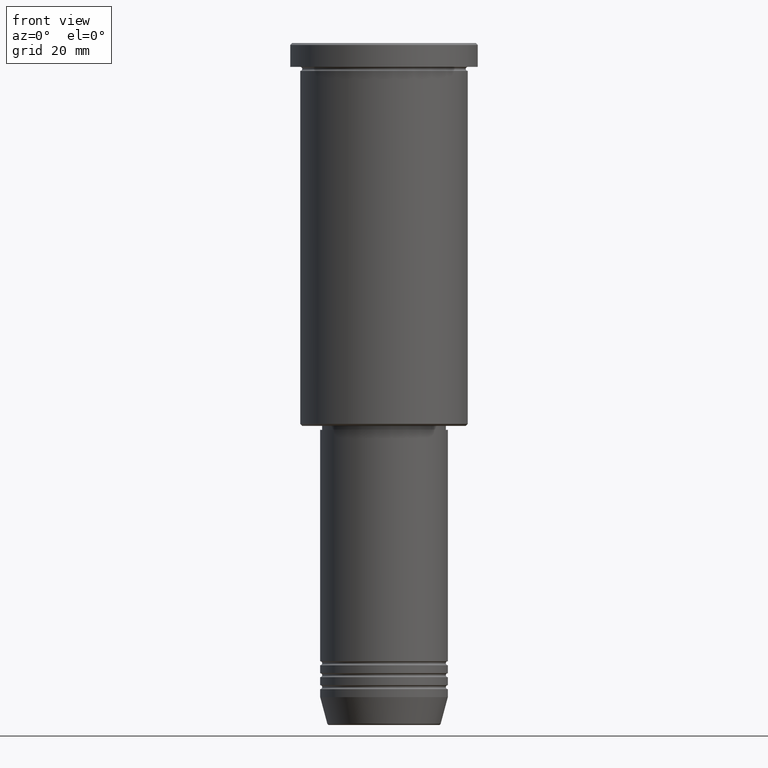
[diagram: clean part render]
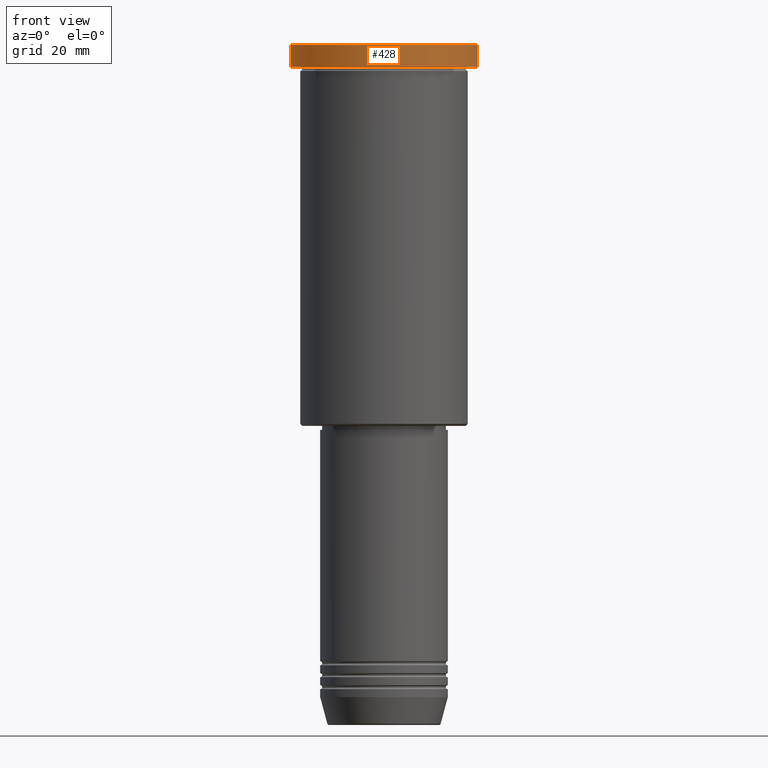
[diagram: same view with one face highlighted and labeled with its STEP entity id]
A machine part, front view. The second image highlights one B-rep face of the part: STEP entity #428.
In plain terms, the highlighted cylindrical surface (partial cylindrical patch) has radius 23.5 mm, axis along (-0, -0, 1).
Its self-contained STEP definition (entity closure, byte-faithful):
#29 = CARTESIAN_POINT ( 'NONE',  ( 0.000000000000000000, 0.000000000000000000, 0.000000000000000000 ) ) ;
#49 = ORIENTED_EDGE ( 'NONE', *, *, #179, .T. ) ;
#65 = CARTESIAN_POINT ( 'NONE',  ( -23.50000000000000000, 2.877919977996280320E-15, -5.999999999999994671 ) ) ;
#84 = VERTEX_POINT ( 'NONE', #649 ) ;
#94 = DIRECTION ( 'NONE',  ( -0.000000000000000000, -0.000000000000000000, 1.000000000000000000 ) ) ;
#138 = AXIS2_PLACEMENT_3D ( 'NONE', #1046, #143, #349 ) ;
#143 = DIRECTION ( 'NONE',  ( -0.000000000000000000, -0.000000000000000000, 1.000000000000000000 ) ) ;
#179 = EDGE_CURVE ( 'NONE', #84, #497, #405, .T. ) ;
#286 = DIRECTION ( 'NONE',  ( 1.000000000000000000, 0.000000000000000000, 0.000000000000000000 ) ) ;
#349 = DIRECTION ( 'NONE',  ( 1.000000000000000000, 0.000000000000000000, 0.000000000000000000 ) ) ;
#393 = DIRECTION ( 'NONE',  ( 1.000000000000000000, 0.000000000000000000, 0.000000000000000000 ) ) ;
#405 = LINE ( 'NONE', #596, #588 ) ;
#415 = VECTOR ( 'NONE', #995, 1000.000000000000000 ) ;
#428 = ADVANCED_FACE ( 'NONE', ( #922 ), #737, .T. ) ;
#451 = ORIENTED_EDGE ( 'NONE', *, *, #848, .T. ) ;
#497 = VERTEX_POINT ( 'NONE', #823 ) ;
#501 = EDGE_CURVE ( 'NONE', #577, #1182, #581, .T. ) ;
#577 = VERTEX_POINT ( 'NONE', #65 ) ;
#581 = LINE ( 'NONE', #648, #415 ) ;
#588 = VECTOR ( 'NONE', #1129, 1000.000000000000000 ) ;
#596 = CARTESIAN_POINT ( 'NONE',  ( 23.50000000000000000, 0.000000000000000000, 0.000000000000000000 ) ) ;
#617 = AXIS2_PLACEMENT_3D ( 'NONE', #29, #94, #393 ) ;
#648 = CARTESIAN_POINT ( 'NONE',  ( -23.50000000000000000, 2.877919977996280320E-15, 0.000000000000000000 ) ) ;
#649 = CARTESIAN_POINT ( 'NONE',  ( 23.50000000000000000, 0.000000000000000000, -5.999999999999994671 ) ) ;
#670 = CARTESIAN_POINT ( 'NONE',  ( 0.000000000000000000, 0.000000000000000000, -0.4999999999999726885 ) ) ;
#679 = ORIENTED_EDGE ( 'NONE', *, *, #862, .T. ) ;
#733 = DIRECTION ( 'NONE',  ( 0.000000000000000000, 0.000000000000000000, -1.000000000000000000 ) ) ;
#737 = CYLINDRICAL_SURFACE ( 'NONE', #617, 23.50000000000000000 ) ;
#763 = ORIENTED_EDGE ( 'NONE', *, *, #501, .F. ) ;
#823 = CARTESIAN_POINT ( 'NONE',  ( 23.50000000000000000, 0.000000000000000000, -0.4999999999999726885 ) ) ;
#848 = EDGE_CURVE ( 'NONE', #497, #1182, #906, .T. ) ;
#862 = EDGE_CURVE ( 'NONE', #577, #84, #928, .T. ) ;
#906 = CIRCLE ( 'NONE', #1073, 23.50000000000000000 ) ;
#922 = FACE_OUTER_BOUND ( 'NONE', #1168, .T. ) ;
#928 = CIRCLE ( 'NONE', #138, 23.50000000000000000 ) ;
#960 = CARTESIAN_POINT ( 'NONE',  ( -23.50000000000000000, 2.877919977996280320E-15, -0.4999999999999726885 ) ) ;
#995 = DIRECTION ( 'NONE',  ( -0.000000000000000000, -0.000000000000000000, 1.000000000000000000 ) ) ;
#1046 = CARTESIAN_POINT ( 'NONE',  ( 0.000000000000000000, 0.000000000000000000, -5.999999999999994671 ) ) ;
#1073 = AXIS2_PLACEMENT_3D ( 'NONE', #670, #733, #286 ) ;
#1129 = DIRECTION ( 'NONE',  ( -0.000000000000000000, -0.000000000000000000, 1.000000000000000000 ) ) ;
#1168 = EDGE_LOOP ( 'NONE', ( #763, #679, #49, #451 ) ) ;
#1182 = VERTEX_POINT ( 'NONE', #960 ) ;